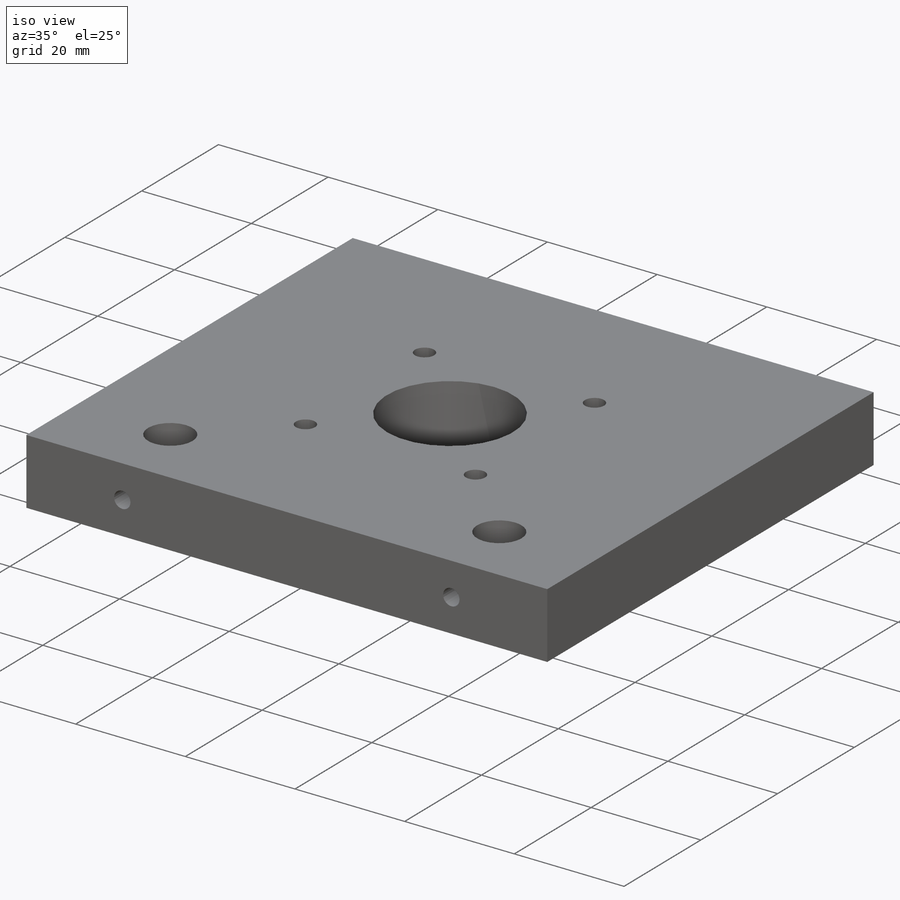
[diagram: iso view]
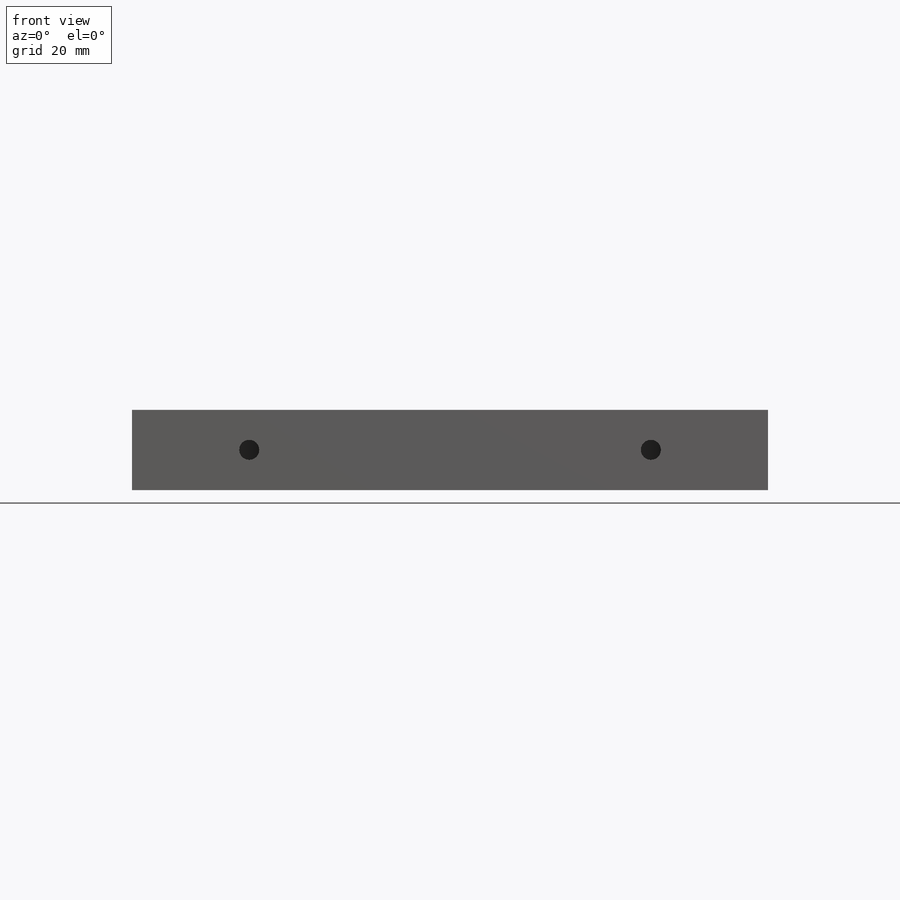
[diagram: front view]
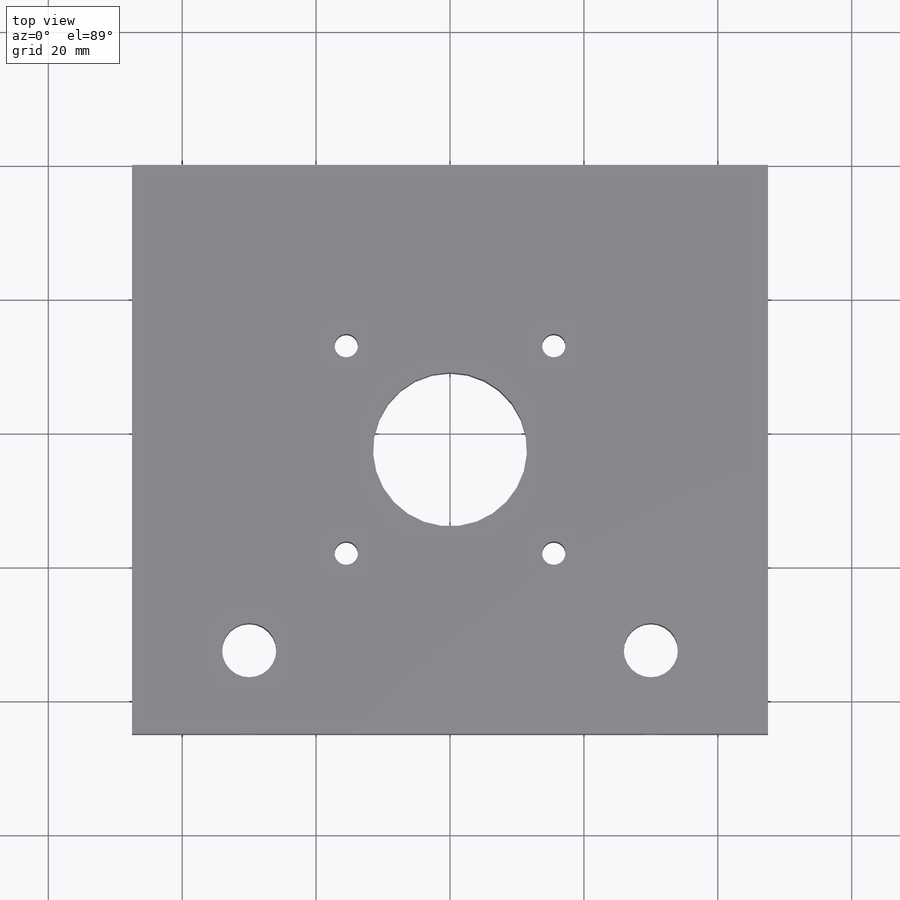
[diagram: top view]
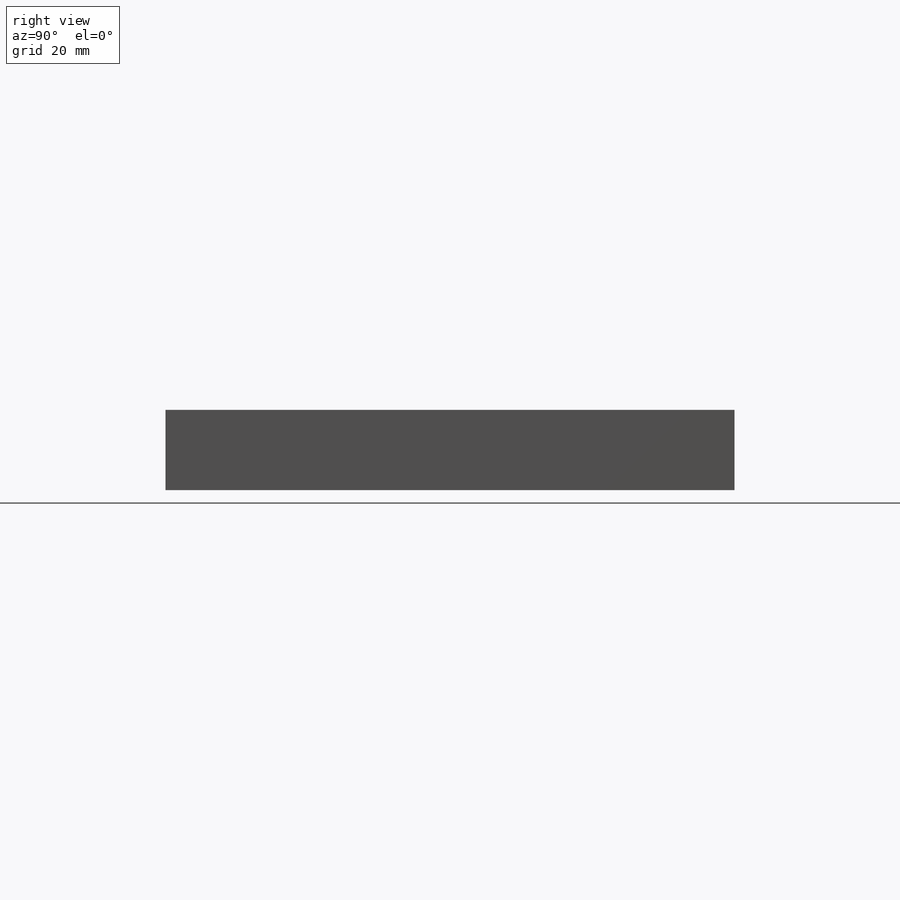
[diagram: right view]
SOLIDWORKS PART (.sldprt)
format: sldprt  version: not decoded by parser v0  size: 202,752 bytes
history: native  units: mm
features: sketch x4, cut_extrude x3, material x1, extrude x1 (+13 scaffold rows collapsed)
feature tree (22):
  scaffold x13  (default folders/planes/origin — collapsed)
  material  "Material <not specified>"
  sketch  "Sketch1"  dims[D1=12.0mm D2=95.0mm]
  extrude  "Boss-Extrude1"  Depth=85mm
  sketch  "Sketch2"  dims[c1.D1=8.1mm c1.D2=8.1mm c1.D3=23.0mm c1.D4=12.5mm c1.12.5=12.5mm c1.D6=12.5mm c1.D5=17.5mm c1.D7=17.5mm c1.D8=47.5mm c2.D6=42.5mm]
  cut_extrude  "Cut-Extrude1"  [1 undecoded]
  sketch  "Sketch4"  dims[D1=3.0mm D2=3.0mm D3=17.5mm D4=17.5mm]
  cut_extrude  "Cut-Extrude3"  [1 undecoded]
  sketch  "Sketch6"  dims[c1.D8=3.5mm c1.D9=3.5mm c1.D10=3.5mm c1.D11=3.5mm c1.D1=27.0mm c1.D2=27.0mm c1.D3=32.0mm c1.D4=32.0mm c1.D5=31.0mm c1.D6=31.0mm c1.D7=31.0mm c2.D8=~32.178786mm c2.D12=32.0mm]
  cut_extrude  "Cut-Extrude4"  [1 undecoded]
decode coverage: 5 of 8 modeling features carry decoded parameters
note: ~ marks probable driven/reference dimensions
note: 3 parameter values undecoded
summary: no parameter record found for 3 features
note: suppression state not decoded; provenance and decode notes live in map.json
